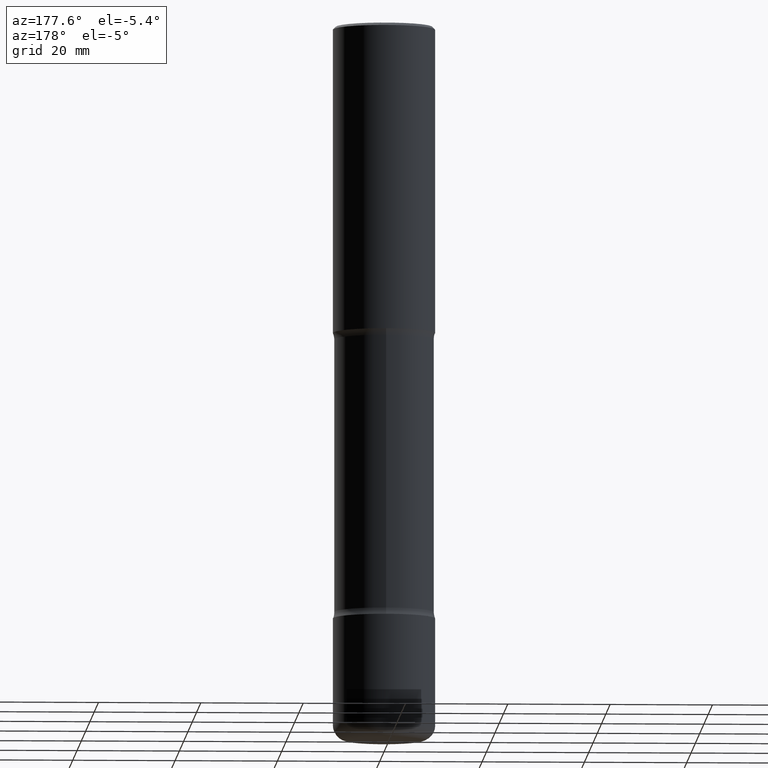
[diagram: clean part render]
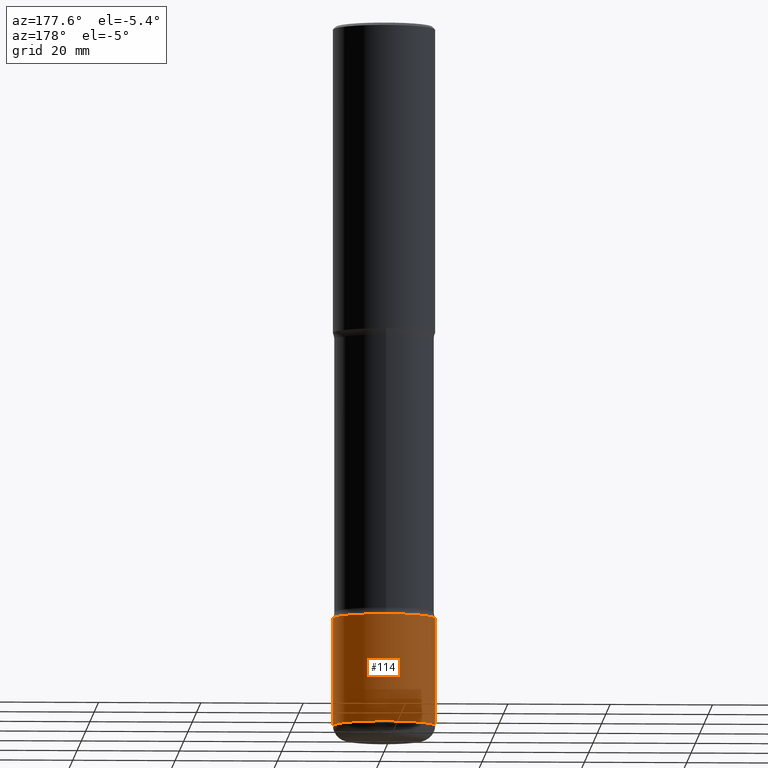
[diagram: same view with one face highlighted and labeled with its STEP entity id]
A machine part, auxiliary view. The second image highlights one B-rep face of the part: STEP entity #114.
In plain terms, the highlighted cylindrical surface (partial cylindrical patch) has radius 10 mm, axis along (-0, 0, 1).
Its self-contained STEP definition (entity closure, byte-faithful):
#2 = DIRECTION ( 'NONE',  ( -2.445468806185136597E-29, 3.491481338843145583E-15, 1.000000000000000000 ) ) ;
#6 = CYLINDRICAL_SURFACE ( 'NONE', #284, 0.3937000000000004940 ) ;
#9 = DIRECTION ( 'NONE',  ( -2.445468806185136597E-29, 3.491481338843145583E-15, 1.000000000000000000 ) ) ;
#10 = VECTOR ( 'NONE', #499, 39.37007874015748143 ) ;
#61 = EDGE_CURVE ( 'NONE', #291, #169, #228, .T. ) ;
#105 = CARTESIAN_POINT ( 'NONE',  ( 0.3937000000000003830, -2.158119530352336260E-14, -5.393700000000000827 ) ) ;
#114 = ADVANCED_FACE ( 'NONE', ( #354 ), #6, .T. ) ;
#125 = EDGE_LOOP ( 'NONE', ( #543, #278, #189, #494 ) ) ;
#162 = VERTEX_POINT ( 'NONE', #444 ) ;
#169 = VERTEX_POINT ( 'NONE', #254 ) ;
#180 = CARTESIAN_POINT ( 'NONE',  ( 1.319012509992077371E-28, -1.883200289731827938E-14, -5.393700000000000827 ) ) ;
#189 = ORIENTED_EDGE ( 'NONE', *, *, #298, .F. ) ;
#201 = CIRCLE ( 'NONE', #317, 0.3937000000000006605 ) ;
#219 = DIRECTION ( 'NONE',  ( 1.000000000000000000, -6.982962677686266711E-15, 0.000000000000000000 ) ) ;
#224 = LINE ( 'NONE', #411, #10 ) ;
#228 = LINE ( 'NONE', #308, #393 ) ;
#232 = EDGE_CURVE ( 'NONE', #291, #162, #201, .T. ) ;
#254 = CARTESIAN_POINT ( 'NONE',  ( 0.3937000000000004385, -1.869443853256785070E-14, -4.566900000000000404 ) ) ;
#278 = ORIENTED_EDGE ( 'NONE', *, *, #309, .T. ) ;
#284 = AXIS2_PLACEMENT_3D ( 'NONE', #402, #9, #301 ) ;
#291 = VERTEX_POINT ( 'NONE', #105 ) ;
#298 = EDGE_CURVE ( 'NONE', #169, #442, #454, .T. ) ;
#301 = DIRECTION ( 'NONE',  ( 1.000000000000000000, -6.982962677686266711E-15, 4.876176775795935793E-29 ) ) ;
#308 = CARTESIAN_POINT ( 'NONE',  ( 0.3937000000000004940, -2.749192406205086766E-15, 1.919750796630862414E-29 ) ) ;
#309 = EDGE_CURVE ( 'NONE', #162, #442, #224, .T. ) ;
#315 = DIRECTION ( 'NONE',  ( -2.445468806185136597E-29, 3.491481338843145583E-15, 1.000000000000000000 ) ) ;
#317 = AXIS2_PLACEMENT_3D ( 'NONE', #180, #2, #219 ) ;
#354 = FACE_OUTER_BOUND ( 'NONE', #125, .T. ) ;
#371 = DIRECTION ( 'NONE',  ( 1.000000000000000000, -6.982962677686270655E-15, 0.000000000000000000 ) ) ;
#393 = VECTOR ( 'NONE', #489, 39.37007874015748143 ) ;
#402 = CARTESIAN_POINT ( 'NONE',  ( 0.000000000000000000, 0.000000000000000000, 0.000000000000000000 ) ) ;
#411 = CARTESIAN_POINT ( 'NONE',  ( -0.3937000000000004940, 2.797406750687517942E-15, -1.936584745033358697E-29 ) ) ;
#442 = VERTEX_POINT ( 'NONE', #445 ) ;
#444 = CARTESIAN_POINT ( 'NONE',  ( -0.3937000000000003830, -1.603459614663076223E-14, -5.393700000000000827 ) ) ;
#445 = CARTESIAN_POINT ( 'NONE',  ( -0.3937000000000004385, -1.459121776115300155E-14, -4.566900000000000404 ) ) ;
#454 = CIRCLE ( 'NONE', #486, 0.3937000000000004385 ) ;
#486 = AXIS2_PLACEMENT_3D ( 'NONE', #492, #315, #371 ) ;
#489 = DIRECTION ( 'NONE',  ( -2.445468806185136877E-29, 3.491481338843145188E-15, 1.000000000000000000 ) ) ;
#492 = CARTESIAN_POINT ( 'NONE',  ( 1.116821149096690103E-28, -1.594524612636276117E-14, -4.566900000000000404 ) ) ;
#494 = ORIENTED_EDGE ( 'NONE', *, *, #61, .F. ) ;
#499 = DIRECTION ( 'NONE',  ( -2.445468806185136877E-29, 3.491481338843145188E-15, 1.000000000000000000 ) ) ;
#543 = ORIENTED_EDGE ( 'NONE', *, *, #232, .T. ) ;